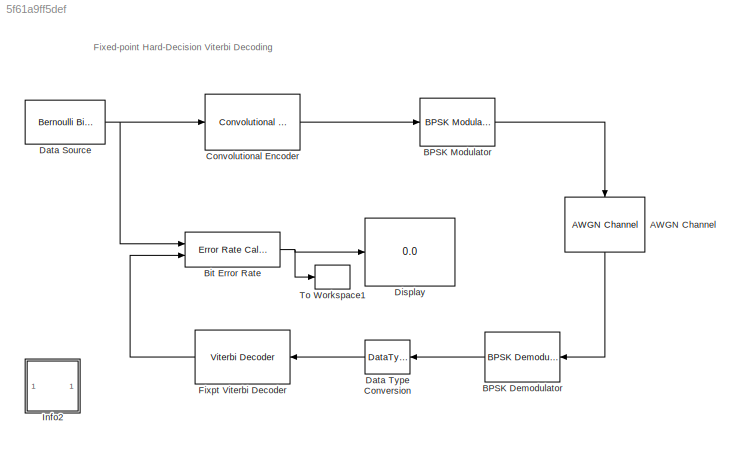
MODEL slx_5f61a9ff5def
KIND model
CONFIG PreLoadFcn = maxNumErrs = 100;\nmaxNumBits = 1e6;\nEbNo = 4;\n
BLOCK [Reference] AWGN Channel  REF=commchan3/AWGN
Channel
  EbNodB = EbNo - 10*log10(2)
  EsNodB = 1
  InputProcessing = Columns as channels (frame based)
  Ports = [1, 1]
  Ps = 1
  SNRdB = 10
  SourceBlock = commchan3/AWGN\nChannel
  SourceType = AWGN Channel
  Tsym = 0.005
  UserDataPersistent = on
  bitsPerSym = 1
  noiseMode = Signal to noise ratio  (Eb/No)
  seed = 113
  variance = 1
BLOCK [Reference] BPSK Demodulator  REF=commdigbbndpm3/BPSK
Demodulator
Baseband
  DecType = Hard decision
  Ph = 0
  Ports = [1, 1]
  SourceBlock = commdigbbndpm3/BPSK\nDemodulator\nBaseband
  SourceType = BPSK Demodulator Baseband
  VarSource = Dialog
  Variance = 1
  derotateFactorDTMode = Same word length as input
  derotateFactorWordLen = 16
  outDtype = uint8
BLOCK [Reference] BPSK Modulator  REF=commdigbbndpm3/BPSK
Modulator
Baseband
  Ph = 0
  Ports = [1, 1]
  SourceBlock = commdigbbndpm3/BPSK\nModulator\nBaseband
  SourceType = BPSK Modulator Baseband
  outDtype = double
  outFracLen = 15
  outFracLenMode = Best precision
  outUDDataType = sfix(16)
  outWordLen = 16
BLOCK [Reference] Bit Error Rate  REF=commsink2/Error Rate
Calculation
  N = 56
  PMode = Port
  Ports = [2, 1]
  RsMode2 = off
  SourceBlock = commsink2/Error Rate\nCalculation
  SourceType = Error Rate Calculation
  WsName = ErrorVec
  cp_mode = Entire frame
  maxBits = maxNumBits
  numErr = maxNumErrs
  st_delay = 0
  stop = on
  subframe = []
BLOCK [Reference] Convolutional Encoder  REF=commcnvcod2/Convolutional
Encoder
  DelayedResetAction = off
  Ports = [1, 1]
  SourceBlock = commcnvcod2/Convolutional\nEncoder
  SourceType = Convolutional Encoder
  hasFinStPort = off
  hasIniStPort = off
  opMode = Continuous
  punctureVector = [1 1 0 1 1 0].'
  reset = Unused parameter value
  trellis = poly2trellis(9, [561 753])
  usePuncVector = off
BLOCK [Reference] Data Source  REF=commrandsrc2/Bernoulli Binary
Generator
  P = 0.5
  Ports = [0, 1]
  SourceBlock = commrandsrc2/Bernoulli Binary\nGenerator
  SourceType = Bernoulli Binary Generator
  Ts = 0.01
  frameBased = on
  orient = off
  outDataType = boolean
  sampPerFrame = 100
  seed = 911
BLOCK [DataTypeConversion] Data Type Conversion
  OutDataTypeStr = fixdt(0,1,0)
  RndMeth = Floor
  SaturateOnIntegerOverflow = off
BLOCK [Display] Display
  Decimation = 1
  Ports = [1]
BLOCK [Reference] Fixpt Viterbi Decoder  REF=commcnvcod2/Viterbi Decoder
  Ports = [1, 1]
  SourceBlock = commcnvcod2/Viterbi Decoder
  SourceType = Viterbi Decoder
  dectype = Hard decision
  delayedResetAction = off
  erasures = off
  isPunctured = off
  nsdecb = 3
  opmode = Continuous
  outDataType = boolean
  punctureVector = [1 1 0 1 1 0].'
  reset = off
  runSigValErrCheck = off
  smWordLength = 4
  tbdepth = 56
  trellis = poly2trellis(9, [561 753])
BLOCK [SubSystem] Info2
  AncestorBlock = commblksprivate/Info
  OpenFcn = helpview([docroot '/toolbox/comm/comm.map'], 'doc_fixpt_vitharddec')
  Ports = []
  RequestExecContextInheritance = off
BLOCK [ToWorkspace] To Workspace1
  MaxDataPoints = 1
  Ports = [1]
  SampleTime = -1
  VariableName = BER
ANNOTATION (root): Fixed-point Hard-Decision Viterbi Decoding
LINE AWGN Channel:1 -> BPSK Demodulator:1
LINE BPSK Demodulator:1 -> Data Type Conversion:1
LINE BPSK Modulator:1 -> AWGN Channel:1
NET Bit Error Rate:1 -> Display:1, To Workspace1:1
LINE Convolutional Encoder:1 -> BPSK Modulator:1
NET Data Source:1 -> Bit Error Rate:1, Convolutional Encoder:1
LINE Data Type Conversion:1 -> Fixpt Viterbi Decoder:1
LINE Fixpt Viterbi Decoder:1 -> Bit Error Rate:2
note: NET lines group one-source signal fan-out (src -> all destinations, sorted); 1:1 wires keep LINE
